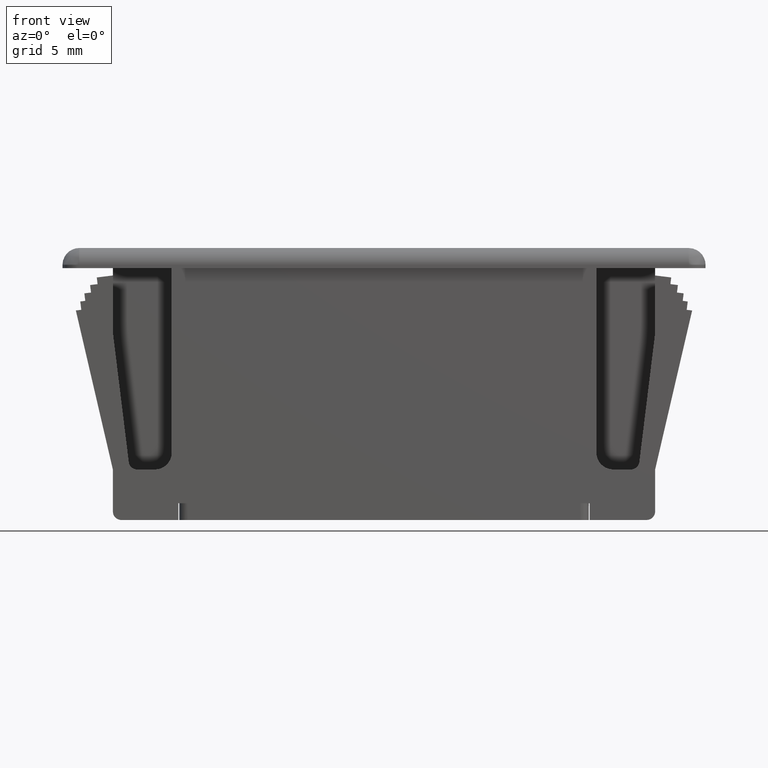
[diagram: clean part render]
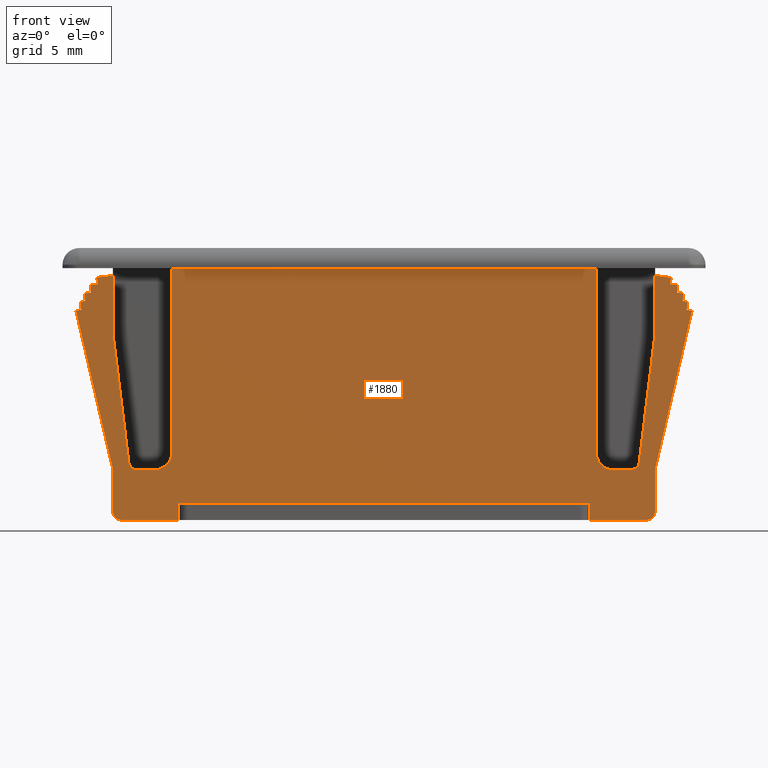
[diagram: same view with one face highlighted and labeled with its STEP entity id]
A machine part, front view. The second image highlights one B-rep face of the part: STEP entity #1880.
In plain terms, the highlighted face is a freeform B-spline surface patch.
Its self-contained STEP definition (entity closure, byte-faithful):
#82=CARTESIAN_POINT('',(-15.203910643087649,-5.500000000000000,-12.760934929107201));
#83=VERTEX_POINT('',#82);
#98=CARTESIAN_POINT('',(-16.149999999999999,-5.500000000000000,-5.055688494344420));
#99=VERTEX_POINT('',#98);
#105=CARTESIAN_POINT('',(-16.149999999999999,-5.500000000000000,-5.055688494344420));
#106=CARTESIAN_POINT('',(-15.203910643087649,-5.500000000000000,-12.760934929107201));
#107=QUASI_UNIFORM_CURVE('',1,(#105,#106),.UNSPECIFIED.,.F.,.U.);
#108=EDGE_CURVE('',#99,#83,#107,.T.);
#154=CARTESIAN_POINT('',(-16.149999999999999,-5.500000000000000,-1.635670367705290));
#155=VERTEX_POINT('',#154);
#161=CARTESIAN_POINT('',(-16.149999999999999,-5.500000000000000,-1.635670367705290));
#162=CARTESIAN_POINT('',(-16.149999999999999,-5.500000000000000,-5.055688494344420));
#163=QUASI_UNIFORM_CURVE('',1,(#161,#162),.UNSPECIFIED.,.F.,.U.);
#164=EDGE_CURVE('',#155,#99,#163,.T.);
#210=CARTESIAN_POINT('',(-17.109590703888252,-5.500000000000000,-1.753493796145930));
#211=VERTEX_POINT('',#210);
#217=CARTESIAN_POINT('',(-17.109590703888252,-5.500000000000000,-1.753493796145930));
#218=CARTESIAN_POINT('',(-16.149999999999999,-5.500000000000000,-1.635670367705290));
#219=QUASI_UNIFORM_CURVE('',1,(#217,#218),.UNSPECIFIED.,.F.,.U.);
#220=EDGE_CURVE('',#211,#155,#219,.T.);
#266=CARTESIAN_POINT('',(-17.060842760603649,-5.500000000000000,-2.150512231518405));
#267=VERTEX_POINT('',#266);
#273=CARTESIAN_POINT('',(-17.060842760603649,-5.500000000000000,-2.150512231518405));
#274=CARTESIAN_POINT('',(-17.109590703888252,-5.500000000000000,-1.753493796145930));
#275=QUASI_UNIFORM_CURVE('',1,(#273,#274),.UNSPECIFIED.,.F.,.U.);
#276=EDGE_CURVE('',#267,#211,#275,.T.);
#322=CARTESIAN_POINT('',(-17.507488500397649,-5.500000000000000,-2.205353667713695));
#323=VERTEX_POINT('',#322);
#329=CARTESIAN_POINT('',(-17.507488500397649,-5.500000000000000,-2.205353667713695));
#330=CARTESIAN_POINT('',(-17.060842760603649,-5.500000000000000,-2.150512231518405));
#331=QUASI_UNIFORM_CURVE('',1,(#329,#330),.UNSPECIFIED.,.F.,.U.);
#332=EDGE_CURVE('',#323,#267,#331,.T.);
#378=CARTESIAN_POINT('',(-17.452647064202250,-5.500000000000000,-2.651999407507590));
#379=VERTEX_POINT('',#378);
#385=CARTESIAN_POINT('',(-17.452647064202250,-5.500000000000000,-2.651999407507590));
#386=CARTESIAN_POINT('',(-17.507488500397649,-5.500000000000000,-2.205353667713695));
#387=QUASI_UNIFORM_CURVE('',1,(#385,#386),.UNSPECIFIED.,.F.,.U.);
#388=EDGE_CURVE('',#379,#323,#387,.T.);
#434=CARTESIAN_POINT('',(-17.849665499574652,-5.500000000000000,-2.700747350792310));
#435=VERTEX_POINT('',#434);
#441=CARTESIAN_POINT('',(-17.849665499574652,-5.500000000000000,-2.700747350792310));
#442=CARTESIAN_POINT('',(-17.452647064202250,-5.500000000000000,-2.651999407507590));
#443=QUASI_UNIFORM_CURVE('',1,(#441,#442),.UNSPECIFIED.,.F.,.U.);
#444=EDGE_CURVE('',#435,#379,#443,.T.);
#490=CARTESIAN_POINT('',(-17.794824063379501,-5.500000000000000,-3.147393090586205));
#491=VERTEX_POINT('',#490);
#497=CARTESIAN_POINT('',(-17.794824063379501,-5.500000000000000,-3.147393090586205));
#498=CARTESIAN_POINT('',(-17.849665499574652,-5.500000000000000,-2.700747350792310));
#499=QUASI_UNIFORM_CURVE('',1,(#497,#498),.UNSPECIFIED.,.F.,.U.);
#500=EDGE_CURVE('',#491,#435,#499,.T.);
#546=CARTESIAN_POINT('',(-18.092587889908650,-5.500000000000000,-3.183954048049830));
#547=VERTEX_POINT('',#546);
#553=CARTESIAN_POINT('',(-18.092587889908650,-5.500000000000000,-3.183954048049830));
#554=CARTESIAN_POINT('',(-17.794824063379501,-5.500000000000000,-3.147393090586205));
#555=QUASI_UNIFORM_CURVE('',1,(#553,#554),.UNSPECIFIED.,.F.,.U.);
#556=EDGE_CURVE('',#547,#491,#555,.T.);
#602=CARTESIAN_POINT('',(-18.031652960802550,-5.500000000000000,-3.680227092265115));
#603=VERTEX_POINT('',#602);
#609=CARTESIAN_POINT('',(-18.031652960802550,-5.500000000000000,-3.680227092265115));
#610=CARTESIAN_POINT('',(-18.092587889908650,-5.500000000000000,-3.183954048049830));
#611=QUASI_UNIFORM_CURVE('',1,(#609,#610),.UNSPECIFIED.,.F.,.U.);
#612=EDGE_CURVE('',#603,#547,#611,.T.);
#658=CARTESIAN_POINT('',(-18.355931706625750,-5.500000000000000,-3.720043686411400));
#659=VERTEX_POINT('',#658);
#665=CARTESIAN_POINT('',(-18.355931706625750,-5.500000000000000,-3.720043686411400));
#666=CARTESIAN_POINT('',(-18.031652960802550,-5.500000000000000,-3.680227092265115));
#667=QUASI_UNIFORM_CURVE('',1,(#665,#666),.UNSPECIFIED.,.F.,.U.);
#668=EDGE_CURVE('',#659,#603,#667,.T.);
#714=CARTESIAN_POINT('',(-16.150000000002951,-5.500000000000000,-13.199999999901101));
#715=VERTEX_POINT('',#714);
#721=CARTESIAN_POINT('',(-16.150000000002951,-5.500000000000000,-13.199999999901101));
#722=CARTESIAN_POINT('',(-18.355931706625750,-5.500000000000000,-3.720043686411400));
#723=QUASI_UNIFORM_CURVE('',1,(#721,#722),.UNSPECIFIED.,.F.,.U.);
#724=EDGE_CURVE('',#715,#659,#723,.T.);
#1605=CARTESIAN_POINT('',(-20.189673101109801,-5.500000000000000,-16.949249970927099));
#1606=CARTESIAN_POINT('',(20.189351526154962,-5.500000000000000,-16.949249970927099));
#1607=CARTESIAN_POINT('',(-20.189673101109801,-5.500000000000000,-0.450749626741575));
#1608=CARTESIAN_POINT('',(20.189351526154962,-5.500000000000000,-0.450749626741575));
#1609=B_SPLINE_SURFACE_WITH_KNOTS('',1,1,((#1605,#1607),(#1606,#1608)),.UNSPECIFIED.,.F.,.F.,.U.,(2,2),(2,2),(0.0,40.379024627264762),(0.0,16.498500344185519),.UNSPECIFIED.);
#1610=CARTESIAN_POINT('',(-12.649999999994380,-5.500000000000000,-12.199999999999999));
#1611=VERTEX_POINT('',#1610);
#1612=CARTESIAN_POINT('',(-12.649999999994360,-5.500000000000000,-1.200000000000016));
#1613=VERTEX_POINT('',#1612);
#1614=CARTESIAN_POINT('',(-12.649999999994380,-5.500000000000000,-12.199999999999999));
#1615=CARTESIAN_POINT('',(-12.649999999994360,-5.500000000000000,-1.200000000000016));
#1616=QUASI_UNIFORM_CURVE('',1,(#1614,#1615),.UNSPECIFIED.,.F.,.U.);
#1617=EDGE_CURVE('',#1611,#1613,#1616,.T.);
#1618=ORIENTED_EDGE('',*,*,#1617,.F.);
#1619=CARTESIAN_POINT('',(-13.649999999994380,-5.500000000000000,-13.199999999999999));
#1620=VERTEX_POINT('',#1619);
#1621=CARTESIAN_POINT('',(-13.649999999994380,-5.500000000000000,-13.199999999999999));
#1622=CARTESIAN_POINT('',(-12.649999999994380,-5.500000000000001,-13.199999999999998));
#1623=CARTESIAN_POINT('',(-12.649999999994380,-5.500000000000000,-12.199999999999999));
#1631=(BOUNDED_CURVE()B_SPLINE_CURVE(2,(#1621,#1622,#1623),.UNSPECIFIED.,.F.,.U.)CURVE()GEOMETRIC_REPRESENTATION_ITEM()QUASI_UNIFORM_CURVE()RATIONAL_B_SPLINE_CURVE((1.0,0.707106781186548,1.0))REPRESENTATION_ITEM(''));
#1632=EDGE_CURVE('',#1620,#1611,#1631,.T.);
#1633=ORIENTED_EDGE('',*,*,#1632,.F.);
#1634=CARTESIAN_POINT('',(-14.707637598872241,-5.500000000000000,-13.199999999999999));
#1635=VERTEX_POINT('',#1634);
#1636=CARTESIAN_POINT('',(-14.707637598872241,-5.500000000000000,-13.199999999999999));
#1637=CARTESIAN_POINT('',(-13.649999999994380,-5.500000000000000,-13.199999999999999));
#1638=QUASI_UNIFORM_CURVE('',1,(#1636,#1637),.UNSPECIFIED.,.F.,.U.);
#1639=EDGE_CURVE('',#1635,#1620,#1638,.T.);
#1640=ORIENTED_EDGE('',*,*,#1639,.F.);
#1641=CARTESIAN_POINT('',(-15.203910643087649,-5.500000000000000,-12.760934929107201));
#1642=CARTESIAN_POINT('',(-15.149999999984592,-5.500000000000000,-13.199999999999999));
#1643=CARTESIAN_POINT('',(-14.707637598872241,-5.500000000000000,-13.199999999999999));
#1651=(BOUNDED_CURVE()B_SPLINE_CURVE(2,(#1641,#1642,#1643),.UNSPECIFIED.,.F.,.U.)CURVE()GEOMETRIC_REPRESENTATION_ITEM()QUASI_UNIFORM_CURVE()RATIONAL_B_SPLINE_CURVE((1.0,0.748955892631324,1.0))REPRESENTATION_ITEM(''));
#1652=EDGE_CURVE('',#83,#1635,#1651,.T.);
#1653=ORIENTED_EDGE('',*,*,#1652,.F.);
#1654=ORIENTED_EDGE('',*,*,#108,.F.);
#1655=ORIENTED_EDGE('',*,*,#164,.F.);
#1656=ORIENTED_EDGE('',*,*,#220,.F.);
#1657=ORIENTED_EDGE('',*,*,#276,.F.);
#1658=ORIENTED_EDGE('',*,*,#332,.F.);
#1659=ORIENTED_EDGE('',*,*,#388,.F.);
#1660=ORIENTED_EDGE('',*,*,#444,.F.);
#1661=ORIENTED_EDGE('',*,*,#500,.F.);
#1662=ORIENTED_EDGE('',*,*,#556,.F.);
#1663=ORIENTED_EDGE('',*,*,#612,.F.);
#1664=ORIENTED_EDGE('',*,*,#668,.F.);
#1665=ORIENTED_EDGE('',*,*,#724,.F.);
#1666=CARTESIAN_POINT('',(-16.149999999999999,-5.500000000000000,-15.699999999999999));
#1667=VERTEX_POINT('',#1666);
#1668=CARTESIAN_POINT('',(-16.149999999999999,-5.500000000000000,-15.699999999999999));
#1669=CARTESIAN_POINT('',(-16.150000000002951,-5.500000000000000,-13.199999999901101));
#1670=QUASI_UNIFORM_CURVE('',1,(#1668,#1669),.UNSPECIFIED.,.F.,.U.);
#1671=EDGE_CURVE('',#1667,#715,#1670,.T.);
#1672=ORIENTED_EDGE('',*,*,#1671,.F.);
#1673=CARTESIAN_POINT('',(-15.650000000000000,-5.500000000000000,-16.199999999999999));
#1674=VERTEX_POINT('',#1673);
#1675=CARTESIAN_POINT('',(-16.149999999999999,-5.500000000000000,-15.699999999999999));
#1676=CARTESIAN_POINT('',(-16.150000000000009,-5.500000000000001,-16.199999999999999));
#1677=CARTESIAN_POINT('',(-15.650000000000000,-5.500000000000000,-16.199999999999999));
#1685=(BOUNDED_CURVE()B_SPLINE_CURVE(2,(#1675,#1676,#1677),.UNSPECIFIED.,.F.,.U.)CURVE()GEOMETRIC_REPRESENTATION_ITEM()QUASI_UNIFORM_CURVE()RATIONAL_B_SPLINE_CURVE((1.0,0.707106781186548,1.0))REPRESENTATION_ITEM(''));
#1686=EDGE_CURVE('',#1667,#1674,#1685,.T.);
#1687=ORIENTED_EDGE('',*,*,#1686,.T.);
#1688=CARTESIAN_POINT('',(-12.249999999994261,-5.500000000000000,-16.199999999999999));
#1689=VERTEX_POINT('',#1688);
#1690=CARTESIAN_POINT('',(-12.249999999994261,-5.500000000000000,-16.199999999999999));
#1691=CARTESIAN_POINT('',(-15.650000000000000,-5.500000000000000,-16.199999999999999));
#1692=QUASI_UNIFORM_CURVE('',1,(#1690,#1691),.UNSPECIFIED.,.F.,.U.);
#1693=EDGE_CURVE('',#1689,#1674,#1692,.T.);
#1694=ORIENTED_EDGE('',*,*,#1693,.F.);
#1695=CARTESIAN_POINT('',(-12.249999999994261,-5.500000000000000,-15.199999999999999));
#1696=VERTEX_POINT('',#1695);
#1697=CARTESIAN_POINT('',(-12.249999999994261,-5.500000000000000,-15.199999999999999));
#1698=CARTESIAN_POINT('',(-12.249999999994261,-5.500000000000000,-16.199999999999999));
#1699=QUASI_UNIFORM_CURVE('',1,(#1697,#1698),.UNSPECIFIED.,.F.,.U.);
#1700=EDGE_CURVE('',#1696,#1689,#1699,.T.);
#1701=ORIENTED_EDGE('',*,*,#1700,.F.);
#1702=CARTESIAN_POINT('',(12.249999999994939,-5.500000000000000,-15.199999999976299));
#1703=VERTEX_POINT('',#1702);
#1704=CARTESIAN_POINT('',(12.249999999994939,-5.500000000000000,-15.199999999976299));
#1705=CARTESIAN_POINT('',(-12.249999999994261,-5.500000000000000,-15.199999999999999));
#1706=QUASI_UNIFORM_CURVE('',1,(#1704,#1705),.UNSPECIFIED.,.F.,.U.);
#1707=EDGE_CURVE('',#1703,#1696,#1706,.T.);
#1708=ORIENTED_EDGE('',*,*,#1707,.F.);
#1709=CARTESIAN_POINT('',(12.249999999994460,-5.500000000000000,-16.199999999999999));
#1710=VERTEX_POINT('',#1709);
#1711=CARTESIAN_POINT('',(12.249999999994460,-5.500000000000000,-16.199999999999999));
#1712=CARTESIAN_POINT('',(12.249999999994939,-5.500000000000000,-15.199999999976299));
#1713=QUASI_UNIFORM_CURVE('',1,(#1711,#1712),.UNSPECIFIED.,.F.,.U.);
#1714=EDGE_CURVE('',#1710,#1703,#1713,.T.);
#1715=ORIENTED_EDGE('',*,*,#1714,.F.);
#1716=CARTESIAN_POINT('',(15.650000000000500,-5.500000000000000,-16.199999999999999));
#1717=VERTEX_POINT('',#1716);
#1718=CARTESIAN_POINT('',(15.650000000000500,-5.500000000000000,-16.199999999999999));
#1719=CARTESIAN_POINT('',(12.249999999994460,-5.500000000000000,-16.199999999999999));
#1720=QUASI_UNIFORM_CURVE('',1,(#1718,#1719),.UNSPECIFIED.,.F.,.U.);
#1721=EDGE_CURVE('',#1717,#1710,#1720,.T.);
#1722=ORIENTED_EDGE('',*,*,#1721,.F.);
#1723=CARTESIAN_POINT('',(16.150000000000450,-5.500000000000000,-15.699999999999999));
#1724=VERTEX_POINT('',#1723);
#1725=CARTESIAN_POINT('',(15.650000000000500,-5.500000000000000,-16.199999999999999));
#1726=CARTESIAN_POINT('',(16.150000000000503,-5.500000000000001,-16.199999999999999));
#1727=CARTESIAN_POINT('',(16.150000000000500,-5.500000000000000,-15.699999999999999));
#1735=(BOUNDED_CURVE()B_SPLINE_CURVE(2,(#1725,#1726,#1727),.UNSPECIFIED.,.F.,.U.)CURVE()GEOMETRIC_REPRESENTATION_ITEM()QUASI_UNIFORM_CURVE()RATIONAL_B_SPLINE_CURVE((1.0,0.707106781186548,1.0))REPRESENTATION_ITEM(''));
#1736=EDGE_CURVE('',#1717,#1724,#1735,.T.);
#1737=ORIENTED_EDGE('',*,*,#1736,.T.);
#1738=CARTESIAN_POINT('',(16.149999999994350,-5.500000000000000,-13.199999999926320));
#1739=VERTEX_POINT('',#1738);
#1740=CARTESIAN_POINT('',(16.149999999994350,-5.500000000000000,-13.199999999926320));
#1741=CARTESIAN_POINT('',(16.150000000000450,-5.500000000000000,-15.699999999999999));
#1742=QUASI_UNIFORM_CURVE('',1,(#1740,#1741),.UNSPECIFIED.,.F.,.U.);
#1743=EDGE_CURVE('',#1739,#1724,#1742,.T.);
#1744=ORIENTED_EDGE('',*,*,#1743,.F.);
#1745=CARTESIAN_POINT('',(18.355609146990648,-5.500000000000000,-3.721429881298120));
#1746=VERTEX_POINT('',#1745);
#1747=CARTESIAN_POINT('',(18.355609146990648,-5.500000000000000,-3.721429881298120));
#1748=CARTESIAN_POINT('',(16.149999999994350,-5.500000000000000,-13.199999999926320));
#1749=QUASI_UNIFORM_CURVE('',1,(#1747,#1748),.UNSPECIFIED.,.F.,.U.);
#1750=EDGE_CURVE('',#1746,#1739,#1749,.T.);
#1751=ORIENTED_EDGE('',*,*,#1750,.F.);
#1752=CARTESIAN_POINT('',(18.031480493917648,-5.500000000000000,-3.681631716303315));
#1753=VERTEX_POINT('',#1752);
#1754=CARTESIAN_POINT('',(18.031480493917648,-5.500000000000000,-3.681631716303315));
#1755=CARTESIAN_POINT('',(18.355609146990648,-5.500000000000000,-3.721429881298120));
#1756=QUASI_UNIFORM_CURVE('',1,(#1754,#1755),.UNSPECIFIED.,.F.,.U.);
#1757=EDGE_CURVE('',#1753,#1746,#1756,.T.);
#1758=ORIENTED_EDGE('',*,*,#1757,.F.);
#1759=CARTESIAN_POINT('',(18.092587889908749,-5.500000000000000,-3.183954048049715));
#1760=VERTEX_POINT('',#1759);
#1761=CARTESIAN_POINT('',(18.092587889908749,-5.500000000000000,-3.183954048049715));
#1762=CARTESIAN_POINT('',(18.031480493917648,-5.500000000000000,-3.681631716303315));
#1763=QUASI_UNIFORM_CURVE('',1,(#1761,#1762),.UNSPECIFIED.,.F.,.U.);
#1764=EDGE_CURVE('',#1760,#1753,#1763,.T.);
#1765=ORIENTED_EDGE('',*,*,#1764,.F.);
#1766=CARTESIAN_POINT('',(17.794824063379750,-5.500000000000000,-3.147393090586095));
#1767=VERTEX_POINT('',#1766);
#1768=CARTESIAN_POINT('',(17.794824063379750,-5.500000000000000,-3.147393090586095));
#1769=CARTESIAN_POINT('',(18.092587889908749,-5.500000000000000,-3.183954048049715));
#1770=QUASI_UNIFORM_CURVE('',1,(#1768,#1769),.UNSPECIFIED.,.F.,.U.);
#1771=EDGE_CURVE('',#1767,#1760,#1770,.T.);
#1772=ORIENTED_EDGE('',*,*,#1771,.F.);
#1773=CARTESIAN_POINT('',(17.849665499575050,-5.500000000000000,-2.700747350792310));
#1774=VERTEX_POINT('',#1773);
#1775=CARTESIAN_POINT('',(17.849665499575050,-5.500000000000000,-2.700747350792310));
#1776=CARTESIAN_POINT('',(17.794824063379750,-5.500000000000000,-3.147393090586095));
#1777=QUASI_UNIFORM_CURVE('',1,(#1775,#1776),.UNSPECIFIED.,.F.,.U.);
#1778=EDGE_CURVE('',#1774,#1767,#1777,.T.);
#1779=ORIENTED_EDGE('',*,*,#1778,.F.);
#1780=CARTESIAN_POINT('',(17.452647064202448,-5.500000000000000,-2.651999407507505));
#1781=VERTEX_POINT('',#1780);
#1782=CARTESIAN_POINT('',(17.452647064202448,-5.500000000000000,-2.651999407507505));
#1783=CARTESIAN_POINT('',(17.849665499575050,-5.500000000000000,-2.700747350792310));
#1784=QUASI_UNIFORM_CURVE('',1,(#1782,#1783),.UNSPECIFIED.,.F.,.U.);
#1785=EDGE_CURVE('',#1781,#1774,#1784,.T.);
#1786=ORIENTED_EDGE('',*,*,#1785,.F.);
#1787=CARTESIAN_POINT('',(17.507488500397951,-5.500000000000000,-2.205353667713610));
#1788=VERTEX_POINT('',#1787);
#1789=CARTESIAN_POINT('',(17.507488500397951,-5.500000000000000,-2.205353667713610));
#1790=CARTESIAN_POINT('',(17.452647064202448,-5.500000000000000,-2.651999407507505));
#1791=QUASI_UNIFORM_CURVE('',1,(#1789,#1790),.UNSPECIFIED.,.F.,.U.);
#1792=EDGE_CURVE('',#1788,#1781,#1791,.T.);
#1793=ORIENTED_EDGE('',*,*,#1792,.F.);
#1794=CARTESIAN_POINT('',(17.060842760604050,-5.500000000000000,-2.150512231518321));
#1795=VERTEX_POINT('',#1794);
#1796=CARTESIAN_POINT('',(17.060842760604050,-5.500000000000000,-2.150512231518321));
#1797=CARTESIAN_POINT('',(17.507488500397951,-5.500000000000000,-2.205353667713610));
#1798=QUASI_UNIFORM_CURVE('',1,(#1796,#1797),.UNSPECIFIED.,.F.,.U.);
#1799=EDGE_CURVE('',#1795,#1788,#1798,.T.);
#1800=ORIENTED_EDGE('',*,*,#1799,.F.);
#1801=CARTESIAN_POINT('',(17.109590703888848,-5.500000000000000,-1.753493796145930));
#1802=VERTEX_POINT('',#1801);
#1803=CARTESIAN_POINT('',(17.109590703888848,-5.500000000000000,-1.753493796145930));
#1804=CARTESIAN_POINT('',(17.060842760604050,-5.500000000000000,-2.150512231518321));
#1805=QUASI_UNIFORM_CURVE('',1,(#1803,#1804),.UNSPECIFIED.,.F.,.U.);
#1806=EDGE_CURVE('',#1802,#1795,#1805,.T.);
#1807=ORIENTED_EDGE('',*,*,#1806,.F.);
#1808=CARTESIAN_POINT('',(16.149999999994652,-5.500000000000000,-1.635670367704590));
#1809=VERTEX_POINT('',#1808);
#1810=CARTESIAN_POINT('',(16.149999999994652,-5.500000000000000,-1.635670367704590));
#1811=CARTESIAN_POINT('',(17.109590703888848,-5.500000000000000,-1.753493796145930));
#1812=QUASI_UNIFORM_CURVE('',1,(#1810,#1811),.UNSPECIFIED.,.F.,.U.);
#1813=EDGE_CURVE('',#1809,#1802,#1812,.T.);
#1814=ORIENTED_EDGE('',*,*,#1813,.F.);
#1815=CARTESIAN_POINT('',(16.149999999995050,-5.500000000000000,-5.055688494387000));
#1816=VERTEX_POINT('',#1815);
#1817=CARTESIAN_POINT('',(16.149999999995050,-5.500000000000000,-5.055688494387000));
#1818=CARTESIAN_POINT('',(16.149999999994652,-5.500000000000000,-1.635670367704590));
#1819=QUASI_UNIFORM_CURVE('',1,(#1817,#1818),.UNSPECIFIED.,.F.,.U.);
#1820=EDGE_CURVE('',#1816,#1809,#1819,.T.);
#1821=ORIENTED_EDGE('',*,*,#1820,.F.);
#1822=CARTESIAN_POINT('',(15.203910643087699,-5.500000000000000,-12.760934929107160));
#1823=VERTEX_POINT('',#1822);
#1824=CARTESIAN_POINT('',(15.203910643087699,-5.500000000000000,-12.760934929107160));
#1825=CARTESIAN_POINT('',(16.149999999995050,-5.500000000000000,-5.055688494387000));
#1826=QUASI_UNIFORM_CURVE('',1,(#1824,#1825),.UNSPECIFIED.,.F.,.U.);
#1827=EDGE_CURVE('',#1823,#1816,#1826,.T.);
#1828=ORIENTED_EDGE('',*,*,#1827,.F.);
#1829=CARTESIAN_POINT('',(14.707637598872420,-5.500000000000000,-13.199999999999999));
#1830=VERTEX_POINT('',#1829);
#1831=CARTESIAN_POINT('',(14.707637598872420,-5.500000000000000,-13.199999999999999));
#1832=CARTESIAN_POINT('',(15.149999999984788,-5.500000000000000,-13.199999999999998));
#1833=CARTESIAN_POINT('',(15.203910643087699,-5.500000000000000,-12.760934929107160));
#1841=(BOUNDED_CURVE()B_SPLINE_CURVE(2,(#1831,#1832,#1833),.UNSPECIFIED.,.F.,.U.)CURVE()GEOMETRIC_REPRESENTATION_ITEM()QUASI_UNIFORM_CURVE()RATIONAL_B_SPLINE_CURVE((1.0,0.748955892631308,1.0))REPRESENTATION_ITEM(''));
#1842=EDGE_CURVE('',#1830,#1823,#1841,.T.);
#1843=ORIENTED_EDGE('',*,*,#1842,.F.);
#1844=CARTESIAN_POINT('',(13.649999999994620,-5.500000000000000,-13.199999999999999));
#1845=VERTEX_POINT('',#1844);
#1846=CARTESIAN_POINT('',(13.649999999994620,-5.500000000000000,-13.199999999999999));
#1847=CARTESIAN_POINT('',(14.707637598872420,-5.500000000000000,-13.199999999999999));
#1848=QUASI_UNIFORM_CURVE('',1,(#1846,#1847),.UNSPECIFIED.,.F.,.U.);
#1849=EDGE_CURVE('',#1845,#1830,#1848,.T.);
#1850=ORIENTED_EDGE('',*,*,#1849,.F.);
#1851=CARTESIAN_POINT('',(12.649999999994639,-5.500000000000000,-12.199999999999999));
#1852=VERTEX_POINT('',#1851);
#1853=CARTESIAN_POINT('',(12.649999999994620,-5.500000000000000,-12.199999999999999));
#1854=CARTESIAN_POINT('',(12.649999999994622,-5.500000000000001,-13.199999999999998));
#1855=CARTESIAN_POINT('',(13.649999999994620,-5.500000000000000,-13.199999999999999));
#1863=(BOUNDED_CURVE()B_SPLINE_CURVE(2,(#1853,#1854,#1855),.UNSPECIFIED.,.F.,.U.)CURVE()GEOMETRIC_REPRESENTATION_ITEM()QUASI_UNIFORM_CURVE()RATIONAL_B_SPLINE_CURVE((1.0,0.707106781186548,1.0))REPRESENTATION_ITEM(''));
#1864=EDGE_CURVE('',#1852,#1845,#1863,.T.);
#1865=ORIENTED_EDGE('',*,*,#1864,.F.);
#1866=CARTESIAN_POINT('',(12.649999999994639,-5.500000000000000,-1.200000000000016));
#1867=VERTEX_POINT('',#1866);
#1868=CARTESIAN_POINT('',(12.649999999994639,-5.500000000000000,-1.200000000000016));
#1869=CARTESIAN_POINT('',(12.649999999994639,-5.500000000000000,-12.199999999999999));
#1870=QUASI_UNIFORM_CURVE('',1,(#1868,#1869),.UNSPECIFIED.,.F.,.U.);
#1871=EDGE_CURVE('',#1867,#1852,#1870,.T.);
#1872=ORIENTED_EDGE('',*,*,#1871,.F.);
#1873=CARTESIAN_POINT('',(-12.649999999994360,-5.500000000000000,-1.200000000000016));
#1874=CARTESIAN_POINT('',(12.649999999994639,-5.500000000000000,-1.200000000000016));
#1875=QUASI_UNIFORM_CURVE('',1,(#1873,#1874),.UNSPECIFIED.,.F.,.U.);
#1876=EDGE_CURVE('',#1613,#1867,#1875,.T.);
#1877=ORIENTED_EDGE('',*,*,#1876,.F.);
#1878=EDGE_LOOP('',(#1618,#1633,#1640,#1653,#1654,#1655,#1656,#1657,#1658,#1659,#1660,#1661,#1662,#1663,#1664,#1665,#1672,#1687,#1694,#1701,#1708,#1715,#1722,#1737,#1744,#1751,#1758,#1765,#1772,#1779,#1786,#1793,#1800,#1807,#1814,#1821,#1828,#1843,#1850,#1865,#1872,#1877));
#1879=FACE_OUTER_BOUND('',#1878,.T.);
#1880=ADVANCED_FACE('',(#1879),#1609,.T.);